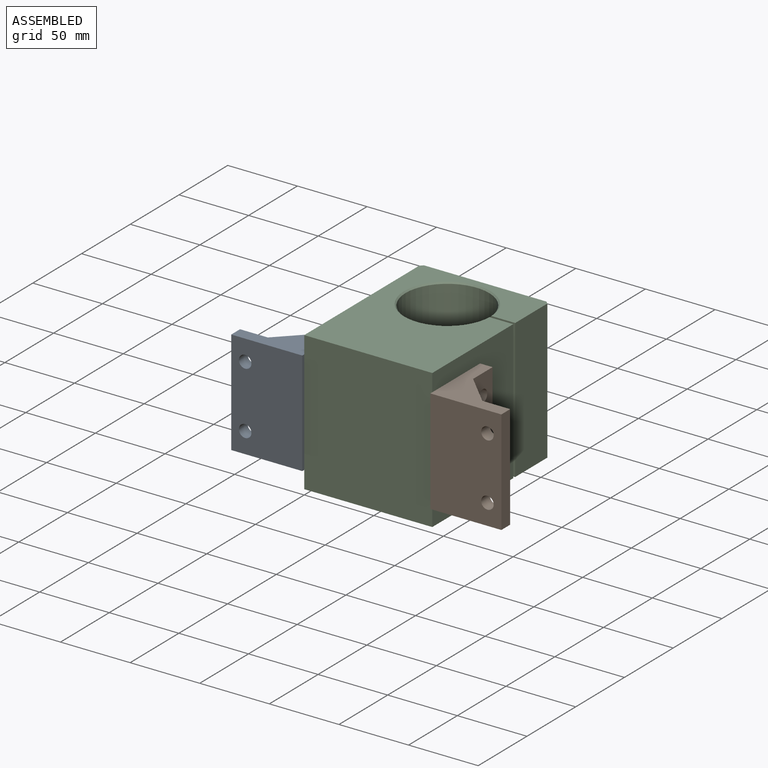
[diagram: assembled view]
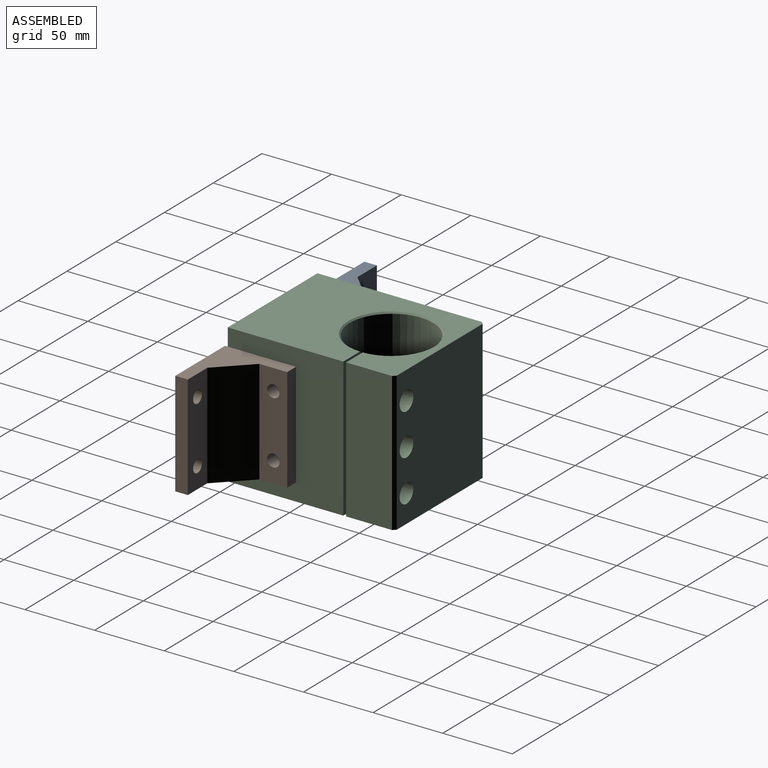
[diagram: assembled view, second angle]
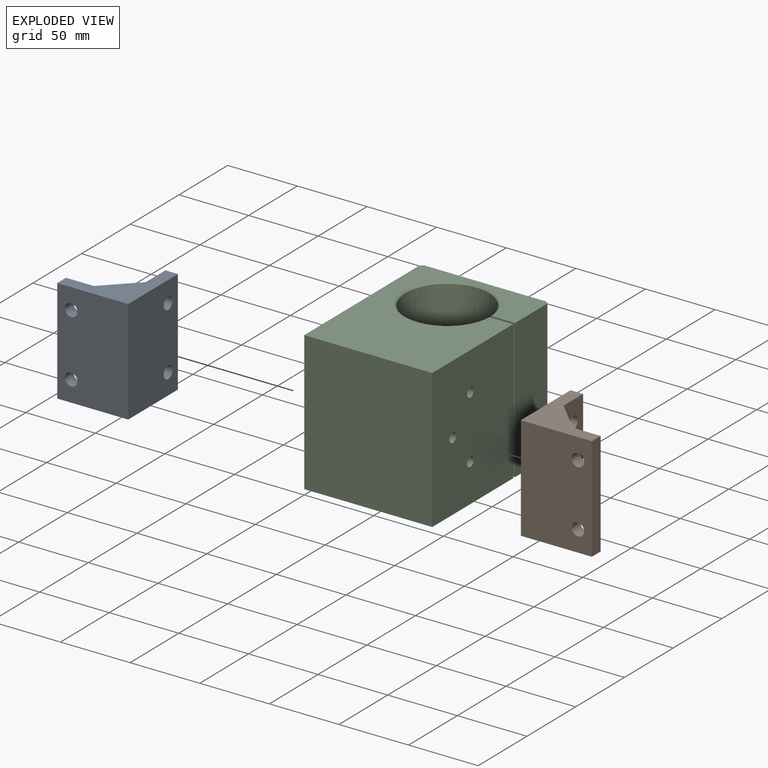
[diagram: exploded view]
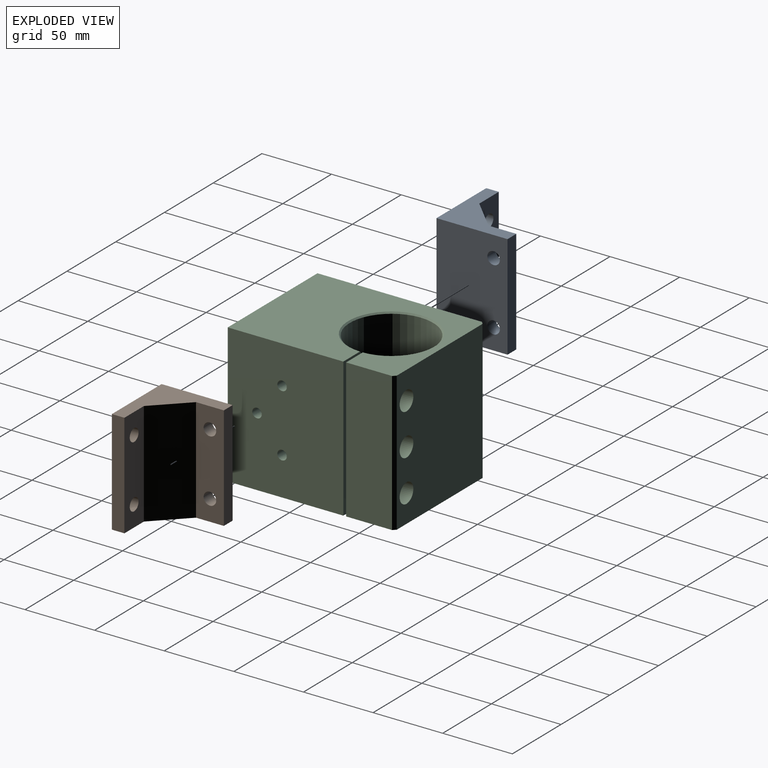
[diagram: exploded view, second angle]
ASSEMBLY  parts=3 mates=2
PART A: 13 faces, bbox 51x51x75 mm
  f0: plane 75x22mm, normal (0.71,0.71,0), area 2333.5mm2, adj f1,f6,f7,f8
  f1: plane 75x20mm, normal (1,0,0), area 1372.8mm2, adj f0,f2,f7,f8,f11,f12
  f2: plane 75x9mm, normal (0,1,0), area 675mm2, adj f1,f3,f7,f8
  f3: plane 75x51mm, normal (-1,0,0), area 3697.8mm2, adj f2,f4,f7,f8,f11,f12
  f4: plane 75x51mm, normal (0,-1,0), area 3697.8mm2, adj f3,f5,f7,f8,f9,f10
  f5: plane 75x9mm, normal (1,0,0), area 675mm2, adj f4,f6,f7,f8
  f6: plane 75x20mm, normal (0,1,0), area 1372.8mm2, adj f0,f5,f7,f8,f9,f10
  f7: plane 51x51mm, normal (0,0,-1), area 1079mm2, adj f0,f1,f2,f3,f4,f5,f6
  f8: plane 51x51mm, normal (0,0,1), area 1079mm2, adj f0,f1,f2,f3,f4,f5,f6
  f9: cylinder r=4.5mm len=9mm, axis (0,-1,0), area 254.5mm2, adj f4,f6
  f10: cylinder r=4.5mm len=9mm, axis (0,-1,0), area 254.5mm2, adj f4,f6
  f11: cylinder r=4.5mm len=9mm, axis (-1,0,0), area 254.5mm2, adj f1,f3
  f12: cylinder r=4.5mm len=9mm, axis (-1,0,0), area 254.5mm2, adj f1,f3
PART B: same geometry as A
PART C: 32 faces, bbox 92x120x100 mm
  f0: plane 100x18.02mm, normal (0,-1,0), area 1630.4mm2, adj f1,f7,f8,f9,f13,f16,f19,f30
  f1: plane 100x33mm, normal (1,0,0), area 3300mm2, adj f0,f8,f9,f29
  f2: plane 100x88mm, normal (0,1,0), area 8338.2mm2, adj f8,f9,f15,f18,f21,f28,f29
  f3: plane 118x100mm, normal (-1,0,0), area 11691mm2, adj f4,f8,f9,f10,f11,f12,f28
  f4: plane 100x92mm, normal (0,-1,0), area 9200mm2, adj f3,f5,f8,f9
  f5: plane 100x83mm, normal (1,0,0), area 8191mm2, adj f4,f6,f8,f9,f10,f11,f12
  f6: plane 100x18.02mm, normal (0,1,0), area 1691.7mm2, adj f5,f7,f8,f9,f23,f25,f27,f30
  f7: cylinder r=30mm len=98mm, axis (0,0,-1), area 18276.5mm2, adj f0,f6,f30,f31
  f8: plane 120x92mm, normal (0,0,1), area 7982.9mm2, adj f0,f1,f2,f3,f4,f5,f6,f28
  f9: plane 120x92mm, normal (0,0,-1), area 7982.9mm2, adj f0,f1,f2,f3,f4,f5,f6,f28
  f10: cylinder r=3.4mm len=92mm, axis (1,0,0), area 1965.4mm2, adj f3,f5
  f11: cylinder r=3.4mm len=92mm, axis (1,0,0), area 1965.4mm2, adj f3,f5
  f12: cylinder r=3.4mm len=92mm, axis (1,0,0), area 1965.4mm2, adj f3,f5
  f13: cylinder r=4.25mm len=26.5mm, axis (0,1,0), area 707.6mm2, adj f0,f14
  f14: plane 14x14mm, normal (0,1,0), area 97.2mm2, adj f13,f15
  f15: cylinder r=7mm len=14mm, axis (0,1,0), area 373.8mm2, adj f2,f14
  f16: cylinder r=4.25mm len=26.5mm, axis (0,1,0), area 707.6mm2, adj f0,f17
  f17: plane 14x14mm, normal (0,1,0), area 97.2mm2, adj f16,f18
  f18: cylinder r=7mm len=14mm, axis (0,1,0), area 373.8mm2, adj f2,f17
  f19: cylinder r=4.25mm len=26.5mm, axis (0,1,0), area 707.6mm2, adj f0,f20
  f20: plane 14x14mm, normal (0,1,0), area 97.2mm2, adj f19,f21
  f21: cylinder r=7mm len=14mm, axis (0,1,0), area 373.8mm2, adj f2,f20
  f22: cone r=0mm half-angle=59deg, axis (0,1,0), area 42.4mm2, adj f23
  f23: cylinder r=3.4mm len=23mm, axis (0,1,0), area 491.3mm2, adj f6,f22
  f24: cone r=0mm half-angle=59deg, axis (0,1,0), area 42.4mm2, adj f25
  f25: cylinder r=3.4mm len=23mm, axis (0,1,0), area 491.3mm2, adj f6,f24
  f26: cone r=0mm half-angle=59deg, axis (0,1,0), area 42.4mm2, adj f27
  f27: cylinder r=3.4mm len=23mm, axis (0,1,0), area 491.3mm2, adj f6,f26
  f28: plane 100x2mm, normal (-0.71,0.71,0), area 282.8mm2, adj f2,f3,f8,f9
  f29: plane 100x2mm, normal (0.71,0.71,0), area 282.8mm2, adj f1,f2,f8,f9
  f30: cone r=31mm half-angle=45deg, axis (0,0,-1), area 268.2mm2, adj f0,f6,f7,f9
  f31: cone r=30mm half-angle=45deg, axis (0,0,1), area 268.2mm2, adj f0,f6,f7,f8
PLACE A rot(axis=(0,1,0),180deg) t=(0,-2,12.5)mm
PLACE B rot(axis=(-0.71,-0.71,0),180deg) t=(92,-2,12.5)mm
PLACE C at identity fixed
MATE fastened A.f12 <-> C.f12  axis (1,0,0) through (0,39,27.5)mm
MATE fastened B.f10 <-> C.f12  axis (-1,0,0) through (92,39,27.5)mm
